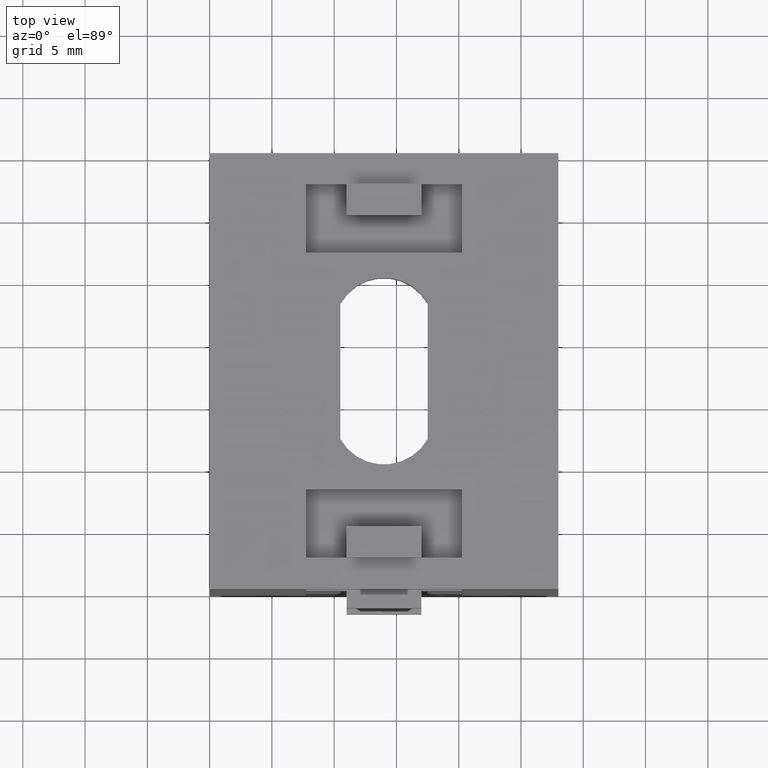
[diagram: clean part render]
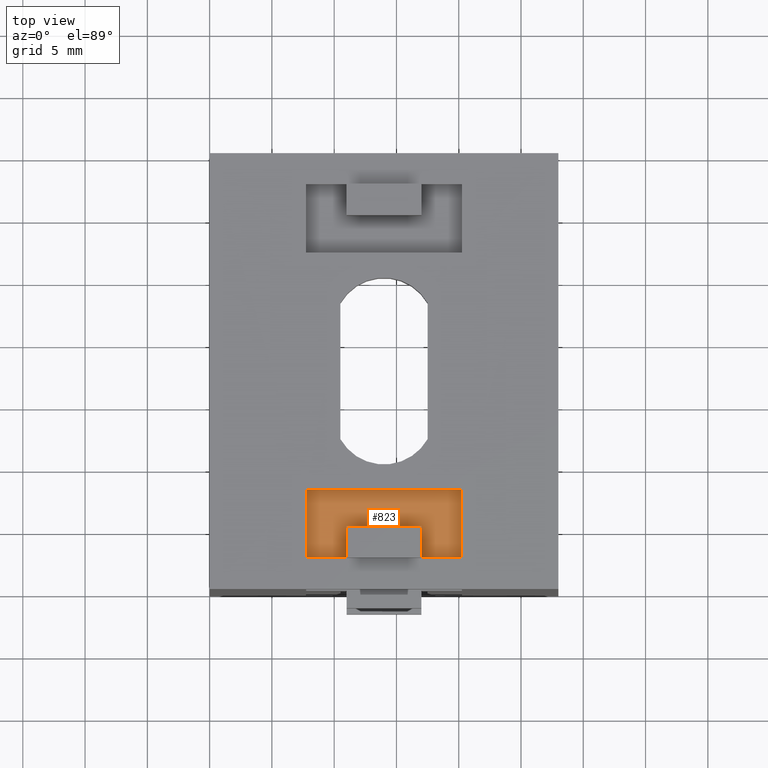
[diagram: same view with one face highlighted and labeled with its STEP entity id]
A machine part, top view. The second image highlights one B-rep face of the part: STEP entity #823.
In plain terms, the highlighted planar face has unit normal (0, 0, 1).
Its self-contained STEP definition (entity closure, byte-faithful):
#54 = VERTEX_POINT ( 'NONE', #1956 ) ;
#59 = VERTEX_POINT ( 'NONE', #1389 ) ;
#66 = VERTEX_POINT ( 'NONE', #1388 ) ;
#168 = CARTESIAN_POINT ( 'NONE',  ( 7.750000000000000000, 5.250000000000000000, -2.000000000000000000 ) ) ;
#169 = DIRECTION ( 'NONE',  ( 0.0000000000000000000, -1.000000000000000000, 0.0000000000000000000 ) ) ;
#183 = CARTESIAN_POINT ( 'NONE',  ( 20.25000000000000000, 5.250000000000000000, -2.000000000000000000 ) ) ;
#184 = DIRECTION ( 'NONE',  ( 0.0000000000000000000, 1.000000000000000000, 0.0000000000000000000 ) ) ;
#185 = CARTESIAN_POINT ( 'NONE',  ( 18.62500000000000400, 2.500000000000000000, -2.000000000000000000 ) ) ;
#186 = DIRECTION ( 'NONE',  ( 1.000000000000000000, 0.0000000000000000000, 0.0000000000000000000 ) ) ;
#258 = CARTESIAN_POINT ( 'NONE',  ( 11.00000000000000000, 5.000000000625000500, -2.000000000000000000 ) ) ;
#266 = CARTESIAN_POINT ( 'NONE',  ( 7.750000000000000000, 8.000000000000000000, -2.000000000000000000 ) ) ;
#267 = CARTESIAN_POINT ( 'NONE',  ( 11.00000000000000000, 2.500000000000000000, -2.000000000000000000 ) ) ;
#270 = CARTESIAN_POINT ( 'NONE',  ( 17.00000000000000000, 5.000000000625000500, -2.000000000000000000 ) ) ;
#280 = CARTESIAN_POINT ( 'NONE',  ( 20.25000000000000000, 2.500000000000000000, -2.000000000000000000 ) ) ;
#442 = FACE_OUTER_BOUND ( 'NONE', #1077, .T. ) ;
#605 = ORIENTED_EDGE ( 'NONE', *, *, #1373, .T. ) ;
#606 = ORIENTED_EDGE ( 'NONE', *, *, #1380, .T. ) ;
#607 = ORIENTED_EDGE ( 'NONE', *, *, #1333, .T. ) ;
#608 = ORIENTED_EDGE ( 'NONE', *, *, #1279, .T. ) ;
#609 = ORIENTED_EDGE ( 'NONE', *, *, #1381, .T. ) ;
#610 = ORIENTED_EDGE ( 'NONE', *, *, #1262, .T. ) ;
#611 = ORIENTED_EDGE ( 'NONE', *, *, #1284, .T. ) ;
#612 = ORIENTED_EDGE ( 'NONE', *, *, #1293, .T. ) ;
#722 = PLANE ( 'NONE',  #2152 ) ;
#723 = CARTESIAN_POINT ( 'NONE',  ( 7.750000000000000000, 2.500000000000000000, -2.000000000000000000 ) ) ;
#724 = DIRECTION ( 'NONE',  ( 0.0000000000000000000, 0.0000000000000000000, 1.000000000000000000 ) ) ;
#725 = DIRECTION ( 'NONE',  ( 1.000000000000000000, 0.0000000000000000000, 0.0000000000000000000 ) ) ;
#823 = ADVANCED_FACE ( 'NONE', ( #442 ), #722, .T. ) ;
#953 = CARTESIAN_POINT ( 'NONE',  ( 17.00000000000000000, 5.250000000000000000, -2.000000000000000000 ) ) ;
#954 = DIRECTION ( 'NONE',  ( -0.0000000000000000000, -1.000000000000000000, -0.0000000000000000000 ) ) ;
#964 = CARTESIAN_POINT ( 'NONE',  ( 14.00000000000000000, 5.000000002500000200, -2.000000000000000000 ) ) ;
#965 = DIRECTION ( 'NONE',  ( 1.000000000000000000, 0.0000000000000000000, 0.0000000000000000000 ) ) ;
#983 = CARTESIAN_POINT ( 'NONE',  ( 9.375000000000000000, 2.500000000000000000, -2.000000000000000000 ) ) ;
#984 = DIRECTION ( 'NONE',  ( 1.000000000000000000, 0.0000000000000000000, 0.0000000000000000000 ) ) ;
#992 = CARTESIAN_POINT ( 'NONE',  ( 14.00000000000000000, 8.000000000000000000, -2.000000000000000000 ) ) ;
#993 = DIRECTION ( 'NONE',  ( -1.000000000000000000, 0.0000000000000000000, 0.0000000000000000000 ) ) ;
#1077 = EDGE_LOOP ( 'NONE', ( #612, #610, #611, #608, #609, #606, #607, #605 ) ) ;
#1262 = EDGE_CURVE ( 'NONE', #2043, #2034, #1789, .T. ) ;
#1279 = EDGE_CURVE ( 'NONE', #2046, #59, #1827, .T. ) ;
#1284 = EDGE_CURVE ( 'NONE', #2034, #2046, #1837, .T. ) ;
#1293 = EDGE_CURVE ( 'NONE', #66, #2043, #1855, .T. ) ;
#1333 = EDGE_CURVE ( 'NONE', #54, #2042, #1862, .T. ) ;
#1373 = EDGE_CURVE ( 'NONE', #2042, #66, #1815, .T. ) ;
#1380 = EDGE_CURVE ( 'NONE', #2056, #54, #1489, .T. ) ;
#1381 = EDGE_CURVE ( 'NONE', #59, #2056, #1460, .T. ) ;
#1388 = CARTESIAN_POINT ( 'NONE',  ( 7.750000000000000000, 2.500000000000000000, -2.000000000000000000 ) ) ;
#1389 = CARTESIAN_POINT ( 'NONE',  ( 17.00000000000000000, 2.500000000000000000, -2.000000000000000000 ) ) ;
#1426 = VECTOR ( 'NONE', #186, 1000.000000000000000 ) ;
#1460 = LINE ( 'NONE', #185, #1426 ) ;
#1461 = VECTOR ( 'NONE', #184, 1000.000000000000000 ) ;
#1489 = LINE ( 'NONE', #183, #1461 ) ;
#1789 = LINE ( 'NONE', #2122, #1790 ) ;
#1790 = VECTOR ( 'NONE', #2123, 1000.000000000000000 ) ;
#1815 = LINE ( 'NONE', #168, #1818 ) ;
#1818 = VECTOR ( 'NONE', #169, 1000.000000000000000 ) ;
#1827 = LINE ( 'NONE', #953, #1828 ) ;
#1828 = VECTOR ( 'NONE', #954, 1000.000000000000000 ) ;
#1837 = LINE ( 'NONE', #964, #1838 ) ;
#1838 = VECTOR ( 'NONE', #965, 1000.000000000000000 ) ;
#1855 = LINE ( 'NONE', #983, #1856 ) ;
#1856 = VECTOR ( 'NONE', #984, 1000.000000000000000 ) ;
#1862 = LINE ( 'NONE', #992, #1864 ) ;
#1864 = VECTOR ( 'NONE', #993, 1000.000000000000000 ) ;
#1956 = CARTESIAN_POINT ( 'NONE',  ( 20.25000000000000000, 8.000000000000000000, -2.000000000000000000 ) ) ;
#2034 = VERTEX_POINT ( 'NONE', #258 ) ;
#2042 = VERTEX_POINT ( 'NONE', #266 ) ;
#2043 = VERTEX_POINT ( 'NONE', #267 ) ;
#2046 = VERTEX_POINT ( 'NONE', #270 ) ;
#2056 = VERTEX_POINT ( 'NONE', #280 ) ;
#2122 = CARTESIAN_POINT ( 'NONE',  ( 11.00000000000000000, 3.750000000000000000, -2.000000000000000000 ) ) ;
#2123 = DIRECTION ( 'NONE',  ( 0.0000000000000000000, 1.000000000000000000, 0.0000000000000000000 ) ) ;
#2152 = AXIS2_PLACEMENT_3D ( 'NONE', #723, #724, #725 ) ;